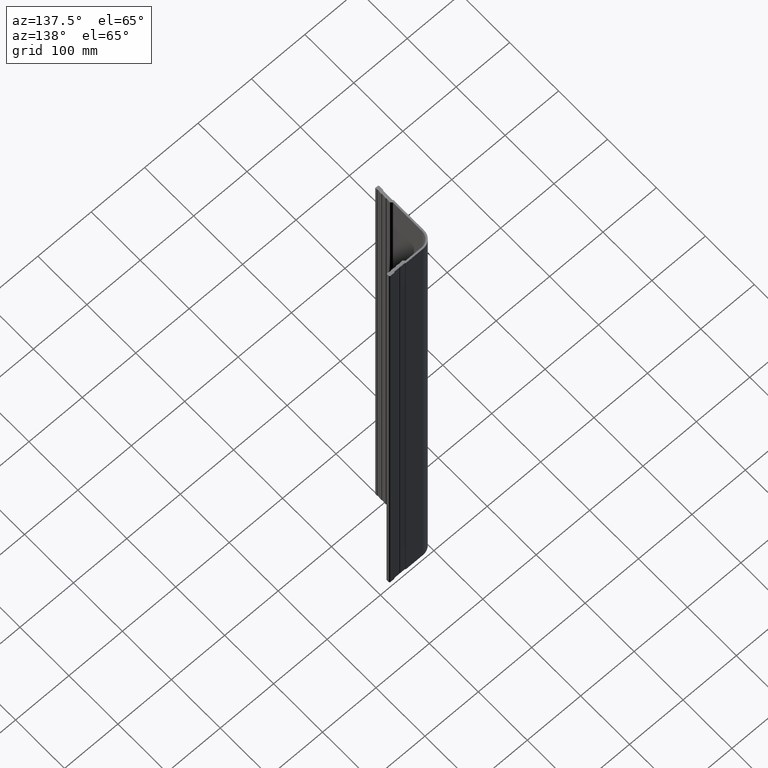
[diagram: clean part render]
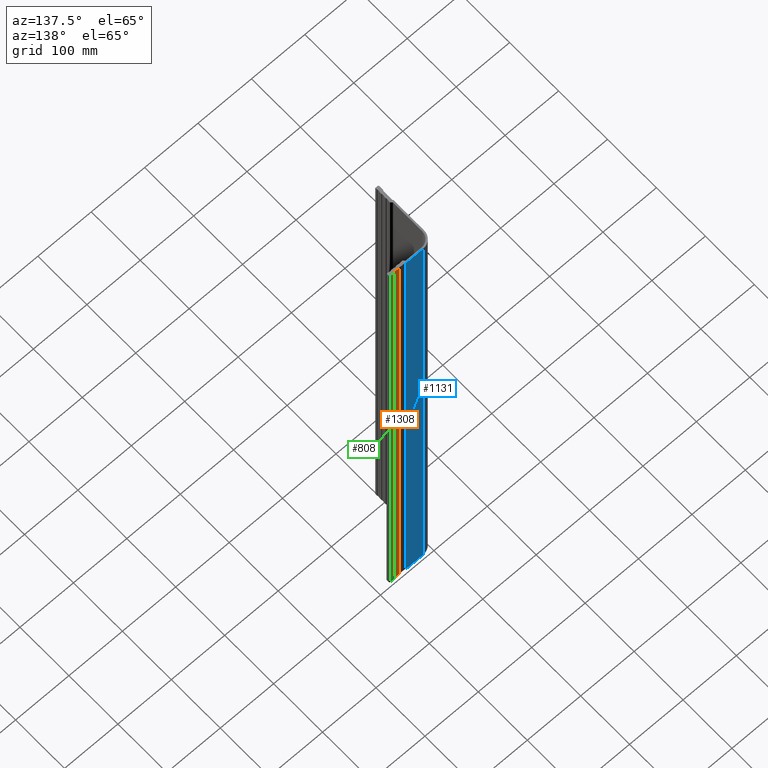
[diagram: same view with three faces highlighted in distinct colors, each labeled with its STEP entity id]
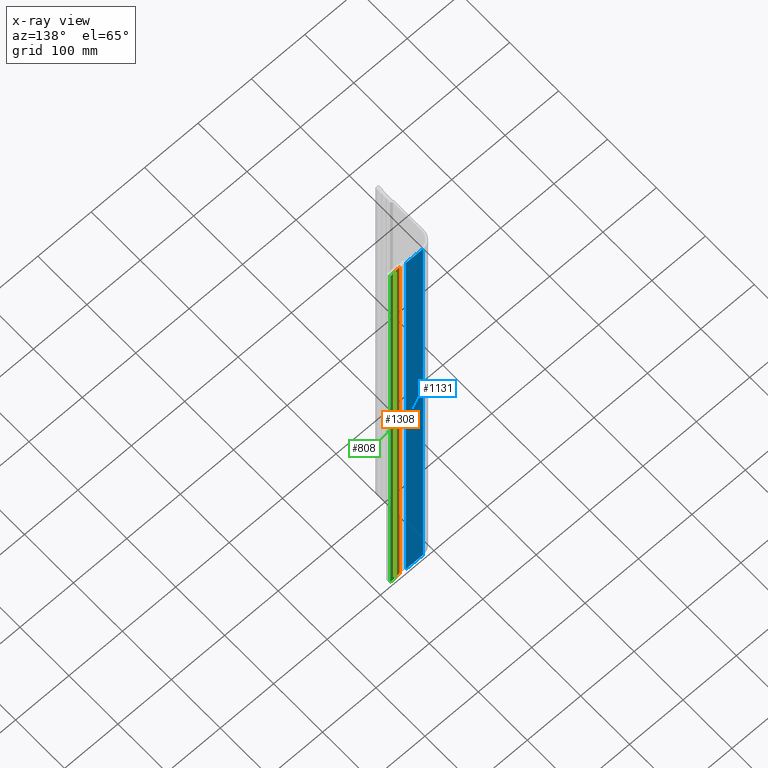
[diagram: x-ray of the same camera — body ghosted, the three highlighted faces saturated]
A machine part, auxiliary view with three faces highlighted in distinct colors.
The next image is the same camera in x-ray (body ghosted, the three faces saturated) — at least one of them is partly hidden behind the body in this view.
Their STEP definitions:

[orange] entity #1308 — the highlighted planar face has unit normal (-0, -1, 0).
#46 = VERTEX_POINT ( 'NONE', #1958 ) ;
#139 = LINE ( 'NONE', #562, #867 ) ;
#304 = VERTEX_POINT ( 'NONE', #1179 ) ;
#334 = LINE ( 'NONE', #491, #1594 ) ;
#373 = AXIS2_PLACEMENT_3D ( 'NONE', #1909, #877, #2076 ) ;
#399 = ORIENTED_EDGE ( 'NONE', *, *, #1976, .T. ) ;
#459 = ORIENTED_EDGE ( 'NONE', *, *, #1512, .F. ) ;
#479 = LINE ( 'NONE', #748, #1234 ) ;
#491 = CARTESIAN_POINT ( 'NONE',  ( 72.99999999999998600, -1.000000000000001300, 500.0000000000000000 ) ) ;
#562 = CARTESIAN_POINT ( 'NONE',  ( 63.49999999999998600, -0.9999999999999967800, 500.0000000000000000 ) ) ;
#572 = PLANE ( 'NONE',  #373 ) ;
#719 = ORIENTED_EDGE ( 'NONE', *, *, #1620, .F. ) ;
#748 = CARTESIAN_POINT ( 'NONE',  ( 63.49999999999998600, -0.9999999999999967800, -500.0000000000000000 ) ) ;
#867 = VECTOR ( 'NONE', #1899, 1000.000000000000000 ) ;
#877 = DIRECTION ( 'NONE',  ( -4.793314867830654300E-016, -1.000000000000000000, 0.0000000000000000000 ) ) ;
#881 = EDGE_LOOP ( 'NONE', ( #399, #459, #719, #1757 ) ) ;
#912 = VERTEX_POINT ( 'NONE', #2085 ) ;
#973 = VECTOR ( 'NONE', #1484, 1000.000000000000000 ) ;
#1093 = EDGE_CURVE ( 'NONE', #912, #46, #334, .T. ) ;
#1124 = CARTESIAN_POINT ( 'NONE',  ( 63.49999999999998600, -0.9999999999999967800, 500.0000000000000000 ) ) ;
#1179 = CARTESIAN_POINT ( 'NONE',  ( 63.49999999999998600, -0.9999999999999967800, -500.0000000000000000 ) ) ;
#1183 = VERTEX_POINT ( 'NONE', #1517 ) ;
#1234 = VECTOR ( 'NONE', #1762, 1000.000000000000000 ) ;
#1308 = ADVANCED_FACE ( 'NONE', ( #1450 ), #572, .F. ) ;
#1432 = LINE ( 'NONE', #1124, #973 ) ;
#1450 = FACE_OUTER_BOUND ( 'NONE', #881, .T. ) ;
#1484 = DIRECTION ( 'NONE',  ( -1.000000000000000000, 4.793314867830654300E-016, -0.0000000000000000000 ) ) ;
#1512 = EDGE_CURVE ( 'NONE', #1183, #304, #139, .T. ) ;
#1517 = CARTESIAN_POINT ( 'NONE',  ( 63.49999999999998600, -0.9999999999999967800, 500.0000000000000000 ) ) ;
#1594 = VECTOR ( 'NONE', #2002, 1000.000000000000000 ) ;
#1620 = EDGE_CURVE ( 'NONE', #912, #1183, #1432, .T. ) ;
#1757 = ORIENTED_EDGE ( 'NONE', *, *, #1093, .T. ) ;
#1762 = DIRECTION ( 'NONE',  ( -1.000000000000000000, 4.793314867830654300E-016, -0.0000000000000000000 ) ) ;
#1899 = DIRECTION ( 'NONE',  ( -0.0000000000000000000, -0.0000000000000000000, -1.000000000000000000 ) ) ;
#1909 = CARTESIAN_POINT ( 'NONE',  ( 63.49999999999998600, -0.9999999999999967800, 500.0000000000000000 ) ) ;
#1958 = CARTESIAN_POINT ( 'NONE',  ( 72.99999999999998600, -1.000000000000001300, -500.0000000000000000 ) ) ;
#1976 = EDGE_CURVE ( 'NONE', #46, #304, #479, .T. ) ;
#2002 = DIRECTION ( 'NONE',  ( -0.0000000000000000000, -0.0000000000000000000, -1.000000000000000000 ) ) ;
#2076 = DIRECTION ( 'NONE',  ( 1.000000000000000000, -4.793314867830654300E-016, 0.0000000000000000000 ) ) ;
#2085 = CARTESIAN_POINT ( 'NONE',  ( 72.99999999999998600, -1.000000000000001300, 500.0000000000000000 ) ) ;

[blue] entity #1131 — the highlighted planar face has unit normal (-0, -1, 0).
#59 = VERTEX_POINT ( 'NONE', #1616 ) ;
#82 = CARTESIAN_POINT ( 'NONE',  ( 20.00000000000001400, 7.689283382565211200E-016, -500.0000000000000000 ) ) ;
#129 = LINE ( 'NONE', #282, #904 ) ;
#214 = VERTEX_POINT ( 'NONE', #1883 ) ;
#227 = CARTESIAN_POINT ( 'NONE',  ( 52.42264973081034200, -4.394144413513602100E-016, 500.0000000000000000 ) ) ;
#282 = CARTESIAN_POINT ( 'NONE',  ( 20.00000000000001400, 7.689283382565211200E-016, 500.0000000000000000 ) ) ;
#316 = ORIENTED_EDGE ( 'NONE', *, *, #1901, .F. ) ;
#333 = LINE ( 'NONE', #513, #786 ) ;
#435 = VERTEX_POINT ( 'NONE', #2104 ) ;
#453 = VECTOR ( 'NONE', #1332, 1000.000000000000000 ) ;
#513 = CARTESIAN_POINT ( 'NONE',  ( 20.00000000000001400, 7.689283382565211200E-016, 500.0000000000000000 ) ) ;
#542 = DIRECTION ( 'NONE',  ( -1.000000000000000000, 3.726847711831606900E-017, -0.0000000000000000000 ) ) ;
#558 = VECTOR ( 'NONE', #542, 1000.000000000000000 ) ;
#621 = ORIENTED_EDGE ( 'NONE', *, *, #1374, .F. ) ;
#645 = FACE_OUTER_BOUND ( 'NONE', #855, .T. ) ;
#671 = DIRECTION ( 'NONE',  ( -3.726847711831606900E-017, -1.000000000000000000, 0.0000000000000000000 ) ) ;
#786 = VECTOR ( 'NONE', #1853, 1000.000000000000000 ) ;
#855 = EDGE_LOOP ( 'NONE', ( #1625, #621, #316, #1446 ) ) ;
#904 = VECTOR ( 'NONE', #1397, 1000.000000000000000 ) ;
#944 = CARTESIAN_POINT ( 'NONE',  ( 52.42264973081034200, -4.394144413513602100E-016, 500.0000000000000000 ) ) ;
#1131 = ADVANCED_FACE ( 'NONE', ( #645 ), #1680, .F. ) ;
#1256 = LINE ( 'NONE', #227, #453 ) ;
#1332 = DIRECTION ( 'NONE',  ( -0.0000000000000000000, -0.0000000000000000000, -1.000000000000000000 ) ) ;
#1374 = EDGE_CURVE ( 'NONE', #214, #59, #333, .T. ) ;
#1397 = DIRECTION ( 'NONE',  ( -1.000000000000000000, 3.726847711831606900E-017, -0.0000000000000000000 ) ) ;
#1424 = LINE ( 'NONE', #82, #558 ) ;
#1446 = ORIENTED_EDGE ( 'NONE', *, *, #1683, .T. ) ;
#1461 = EDGE_CURVE ( 'NONE', #435, #59, #1424, .T. ) ;
#1491 = CARTESIAN_POINT ( 'NONE',  ( 20.00000000000001400, 7.689283382565211200E-016, 500.0000000000000000 ) ) ;
#1616 = CARTESIAN_POINT ( 'NONE',  ( 20.00000000000001400, 7.689283382565211200E-016, -500.0000000000000000 ) ) ;
#1625 = ORIENTED_EDGE ( 'NONE', *, *, #1461, .T. ) ;
#1680 = PLANE ( 'NONE',  #1696 ) ;
#1683 = EDGE_CURVE ( 'NONE', #2015, #435, #1256, .T. ) ;
#1696 = AXIS2_PLACEMENT_3D ( 'NONE', #1491, #671, #1846 ) ;
#1846 = DIRECTION ( 'NONE',  ( 1.000000000000000000, -3.726847711831606900E-017, 0.0000000000000000000 ) ) ;
#1853 = DIRECTION ( 'NONE',  ( -0.0000000000000000000, -0.0000000000000000000, -1.000000000000000000 ) ) ;
#1883 = CARTESIAN_POINT ( 'NONE',  ( 20.00000000000001400, 7.689283382565211200E-016, 500.0000000000000000 ) ) ;
#1901 = EDGE_CURVE ( 'NONE', #2015, #214, #129, .T. ) ;
#2015 = VERTEX_POINT ( 'NONE', #944 ) ;
#2104 = CARTESIAN_POINT ( 'NONE',  ( 52.42264973081034200, -4.394144413513602100E-016, -500.0000000000000000 ) ) ;

[green] entity #808 — the highlighted planar face has unit normal (0, -1, 0).
#9 = VECTOR ( 'NONE', #409, 1000.000000000000000 ) ;
#75 = EDGE_LOOP ( 'NONE', ( #1340, #1293, #1126, #427 ) ) ;
#92 = VERTEX_POINT ( 'NONE', #818 ) ;
#131 = AXIS2_PLACEMENT_3D ( 'NONE', #262, #1550, #566 ) ;
#262 = CARTESIAN_POINT ( 'NONE',  ( 73.57735026918962300, -1.734723475976807100E-015, 500.0000000000000000 ) ) ;
#263 = LINE ( 'NONE', #1835, #1837 ) ;
#272 = VERTEX_POINT ( 'NONE', #1557 ) ;
#317 = VECTOR ( 'NONE', #1464, 1000.000000000000000 ) ;
#402 = LINE ( 'NONE', #567, #9 ) ;
#409 = DIRECTION ( 'NONE',  ( -0.0000000000000000000, -0.0000000000000000000, -1.000000000000000000 ) ) ;
#410 = CARTESIAN_POINT ( 'NONE',  ( 73.57735026918962300, -1.734723475976807100E-015, -500.0000000000000000 ) ) ;
#427 = ORIENTED_EDGE ( 'NONE', *, *, #1536, .T. ) ;
#461 = EDGE_CURVE ( 'NONE', #92, #1500, #733, .T. ) ;
#566 = DIRECTION ( 'NONE',  ( 1.000000000000000000, 2.337067676487833000E-016, 0.0000000000000000000 ) ) ;
#567 = CARTESIAN_POINT ( 'NONE',  ( 81.00000000000001400, 7.806255641895631900E-015, 500.0000000000000000 ) ) ;
#733 = LINE ( 'NONE', #1241, #317 ) ;
#808 = ADVANCED_FACE ( 'NONE', ( #1109 ), #2062, .F. ) ;
#818 = CARTESIAN_POINT ( 'NONE',  ( 81.00000000000001400, 7.806255641895631900E-015, 500.0000000000000000 ) ) ;
#856 = CARTESIAN_POINT ( 'NONE',  ( 73.57735026918962300, -1.734723475976807100E-015, 500.0000000000000000 ) ) ;
#870 = VECTOR ( 'NONE', #2090, 1000.000000000000000 ) ;
#958 = EDGE_CURVE ( 'NONE', #1500, #1867, #1785, .T. ) ;
#1109 = FACE_OUTER_BOUND ( 'NONE', #75, .T. ) ;
#1126 = ORIENTED_EDGE ( 'NONE', *, *, #461, .F. ) ;
#1241 = CARTESIAN_POINT ( 'NONE',  ( 73.57735026918962300, -1.734723475976807100E-015, 500.0000000000000000 ) ) ;
#1293 = ORIENTED_EDGE ( 'NONE', *, *, #958, .F. ) ;
#1340 = ORIENTED_EDGE ( 'NONE', *, *, #1636, .T. ) ;
#1464 = DIRECTION ( 'NONE',  ( -1.000000000000000000, -2.337067676487833000E-016, -0.0000000000000000000 ) ) ;
#1500 = VERTEX_POINT ( 'NONE', #856 ) ;
#1536 = EDGE_CURVE ( 'NONE', #92, #272, #402, .T. ) ;
#1550 = DIRECTION ( 'NONE',  ( 2.337067676487833000E-016, -1.000000000000000000, 0.0000000000000000000 ) ) ;
#1557 = CARTESIAN_POINT ( 'NONE',  ( 81.00000000000001400, 7.806255641895631900E-015, -500.0000000000000000 ) ) ;
#1589 = CARTESIAN_POINT ( 'NONE',  ( 73.57735026918962300, -1.734723475976807100E-015, 500.0000000000000000 ) ) ;
#1636 = EDGE_CURVE ( 'NONE', #272, #1867, #263, .T. ) ;
#1785 = LINE ( 'NONE', #1589, #870 ) ;
#1835 = CARTESIAN_POINT ( 'NONE',  ( 73.57735026918962300, -1.734723475976807100E-015, -500.0000000000000000 ) ) ;
#1837 = VECTOR ( 'NONE', #2010, 1000.000000000000000 ) ;
#1867 = VERTEX_POINT ( 'NONE', #410 ) ;
#2010 = DIRECTION ( 'NONE',  ( -1.000000000000000000, -2.337067676487833000E-016, -0.0000000000000000000 ) ) ;
#2062 = PLANE ( 'NONE',  #131 ) ;
#2090 = DIRECTION ( 'NONE',  ( -0.0000000000000000000, -0.0000000000000000000, -1.000000000000000000 ) ) ;